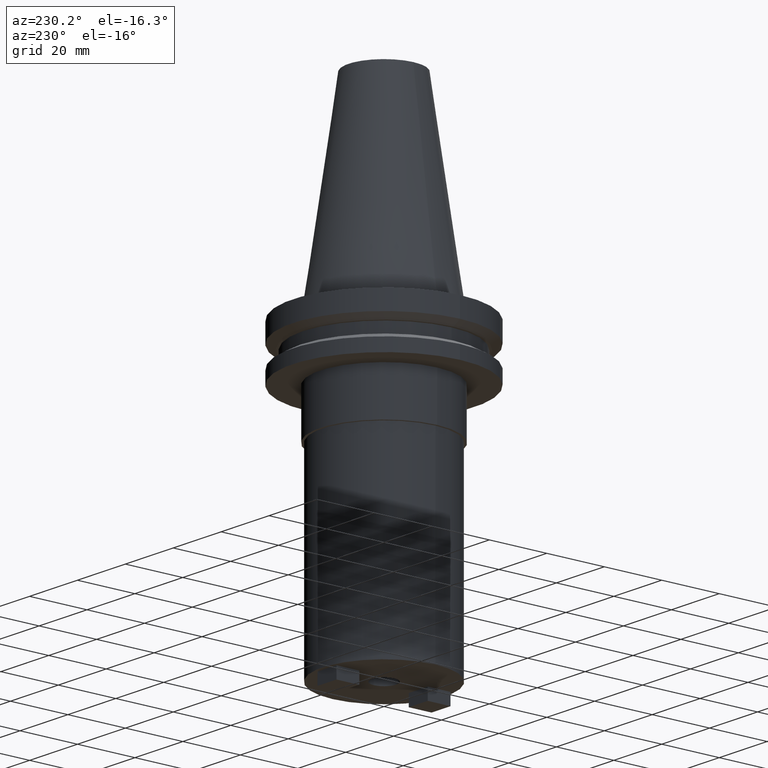
[diagram: clean part render]
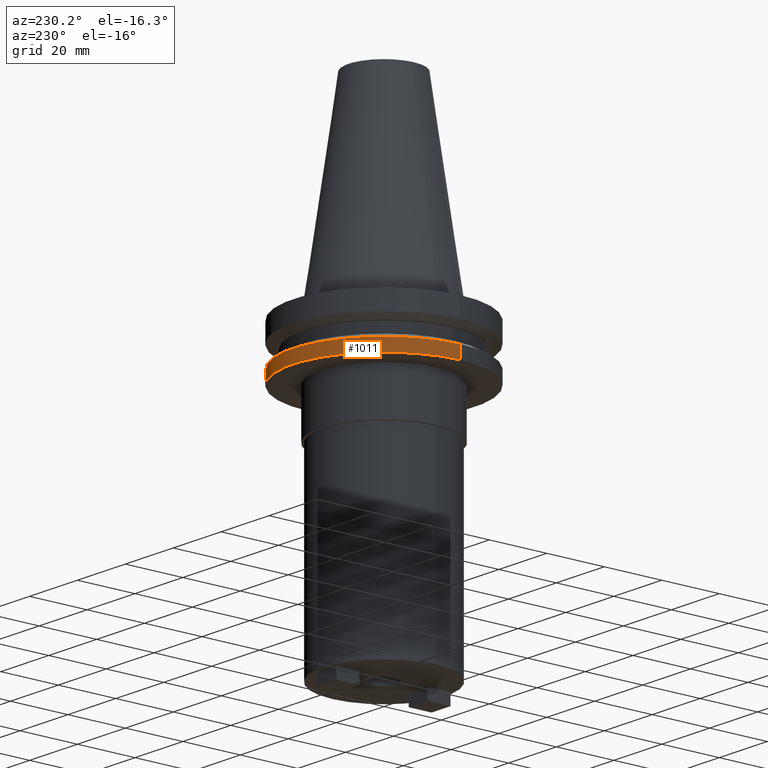
[diagram: same view with one face highlighted and labeled with its STEP entity id]
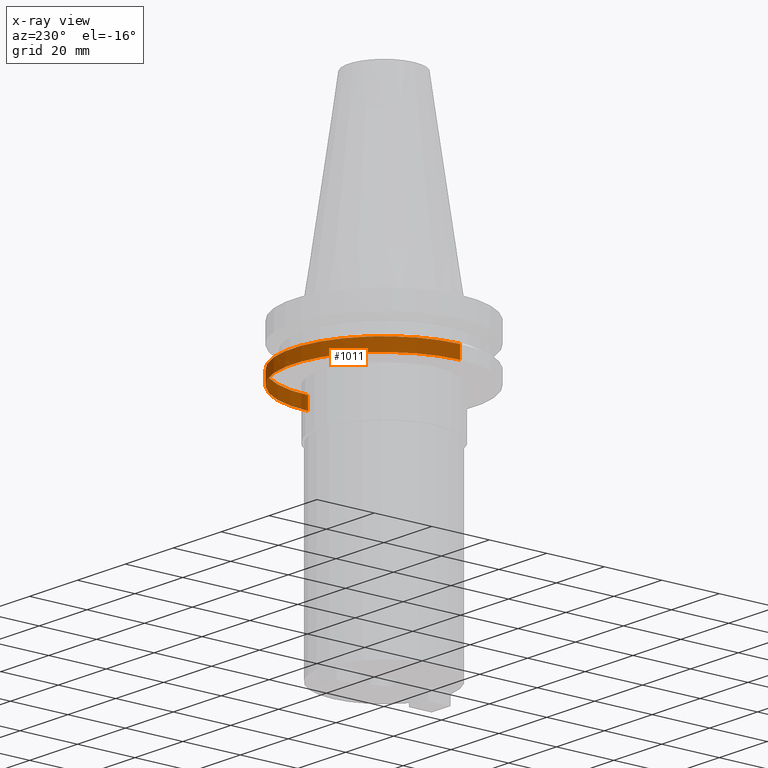
[diagram: x-ray of the same camera — body ghosted, the highlighted face saturated]
A machine part, auxiliary view. The second image highlights one B-rep face of the part: STEP entity #1011.
The next image is the same camera in x-ray: the body ghosted, the highlighted face saturated — about 3% of this face is hidden behind the body in this view.
In plain terms, the highlighted cylindrical surface (partial cylindrical patch) has radius 31.75 mm, axis along (-0, -0, 1).
Its self-contained STEP definition (entity closure, byte-faithful):
#3 = VERTEX_POINT ( 'NONE', #944 ) ;
#18 = CARTESIAN_POINT ( 'NONE',  ( 0.000000000000000000, 0.000000000000000000, 68.25000000000000000 ) ) ;
#68 = DIRECTION ( 'NONE',  ( -0.000000000000000000, -0.000000000000000000, 1.000000000000000000 ) ) ;
#77 = VERTEX_POINT ( 'NONE', #466 ) ;
#132 = FACE_OUTER_BOUND ( 'NONE', #807, .T. ) ;
#172 = ORIENTED_EDGE ( 'NONE', *, *, #671, .T. ) ;
#173 = CARTESIAN_POINT ( 'NONE',  ( 31.75000000000000000, 0.000000000000000000, -14.65472339340266572 ) ) ;
#208 = CARTESIAN_POINT ( 'NONE',  ( -31.74999999999999289, 3.888253587292845687E-15, -19.04999999999999716 ) ) ;
#227 = DIRECTION ( 'NONE',  ( -0.000000000000000000, -0.000000000000000000, 1.000000000000000000 ) ) ;
#231 = AXIS2_PLACEMENT_3D ( 'NONE', #18, #467, #789 ) ;
#237 = EDGE_CURVE ( 'NONE', #503, #3, #246, .T. ) ;
#246 = LINE ( 'NONE', #494, #491 ) ;
#253 = DIRECTION ( 'NONE',  ( -0.000000000000000000, -0.000000000000000000, 1.000000000000000000 ) ) ;
#271 = CIRCLE ( 'NONE', #300, 31.75000000000000000 ) ;
#280 = ORIENTED_EDGE ( 'NONE', *, *, #605, .F. ) ;
#300 = AXIS2_PLACEMENT_3D ( 'NONE', #734, #253, #810 ) ;
#318 = CIRCLE ( 'NONE', #690, 31.74999999999999289 ) ;
#329 = DIRECTION ( 'NONE',  ( 1.000000000000000000, 0.000000000000000000, 0.000000000000000000 ) ) ;
#338 = VECTOR ( 'NONE', #727, 1000.000000000000000 ) ;
#466 = CARTESIAN_POINT ( 'NONE',  ( 31.74999999999999289, 0.000000000000000000, -19.04999999999999716 ) ) ;
#467 = DIRECTION ( 'NONE',  ( -0.000000000000000000, -0.000000000000000000, 1.000000000000000000 ) ) ;
#484 = CARTESIAN_POINT ( 'NONE',  ( 0.000000000000000000, 0.000000000000000000, -19.04999999999999716 ) ) ;
#491 = VECTOR ( 'NONE', #227, 1000.000000000000000 ) ;
#494 = CARTESIAN_POINT ( 'NONE',  ( -31.75000000000000000, 3.888253587292846476E-15, 68.25000000000000000 ) ) ;
#503 = VERTEX_POINT ( 'NONE', #208 ) ;
#605 = EDGE_CURVE ( 'NONE', #852, #3, #271, .T. ) ;
#647 = ORIENTED_EDGE ( 'NONE', *, *, #237, .T. ) ;
#671 = EDGE_CURVE ( 'NONE', #77, #503, #318, .T. ) ;
#690 = AXIS2_PLACEMENT_3D ( 'NONE', #484, #68, #329 ) ;
#727 = DIRECTION ( 'NONE',  ( -0.000000000000000000, -0.000000000000000000, 1.000000000000000000 ) ) ;
#734 = CARTESIAN_POINT ( 'NONE',  ( 0.000000000000000000, 0.000000000000000000, -14.65472339340266572 ) ) ;
#779 = EDGE_CURVE ( 'NONE', #77, #852, #978, .T. ) ;
#789 = DIRECTION ( 'NONE',  ( 1.000000000000000000, 0.000000000000000000, 0.000000000000000000 ) ) ;
#807 = EDGE_LOOP ( 'NONE', ( #172, #647, #280, #943 ) ) ;
#810 = DIRECTION ( 'NONE',  ( 1.000000000000000000, 0.000000000000000000, 0.000000000000000000 ) ) ;
#848 = CYLINDRICAL_SURFACE ( 'NONE', #231, 31.75000000000000000 ) ;
#852 = VERTEX_POINT ( 'NONE', #173 ) ;
#943 = ORIENTED_EDGE ( 'NONE', *, *, #779, .F. ) ;
#944 = CARTESIAN_POINT ( 'NONE',  ( -31.75000000000000000, 3.888253587292846476E-15, -14.65472339340266572 ) ) ;
#978 = LINE ( 'NONE', #987, #338 ) ;
#987 = CARTESIAN_POINT ( 'NONE',  ( 31.75000000000000000, 0.000000000000000000, 68.25000000000000000 ) ) ;
#1011 = ADVANCED_FACE ( 'NONE', ( #132 ), #848, .T. ) ;